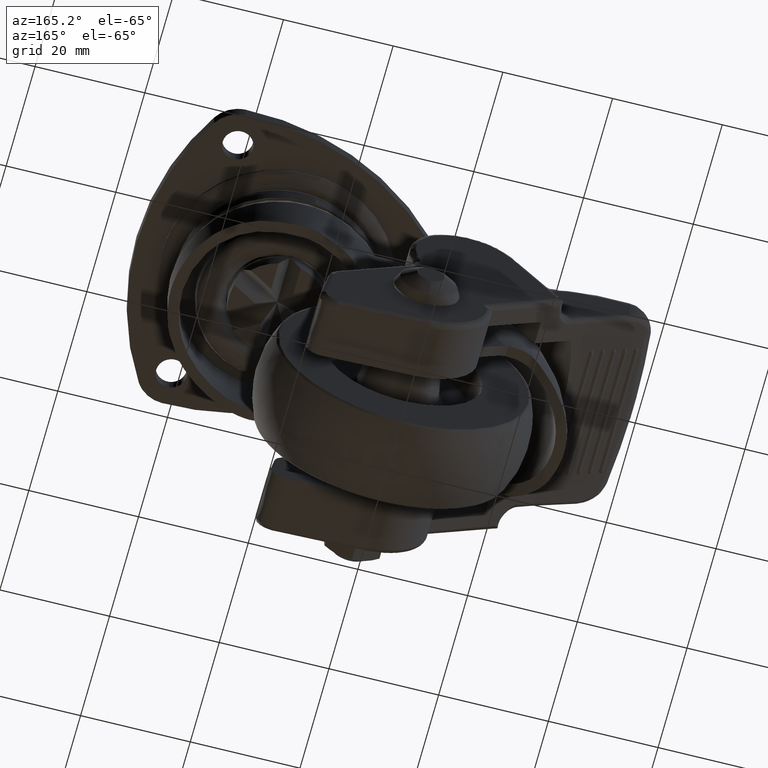
[diagram: clean part render]
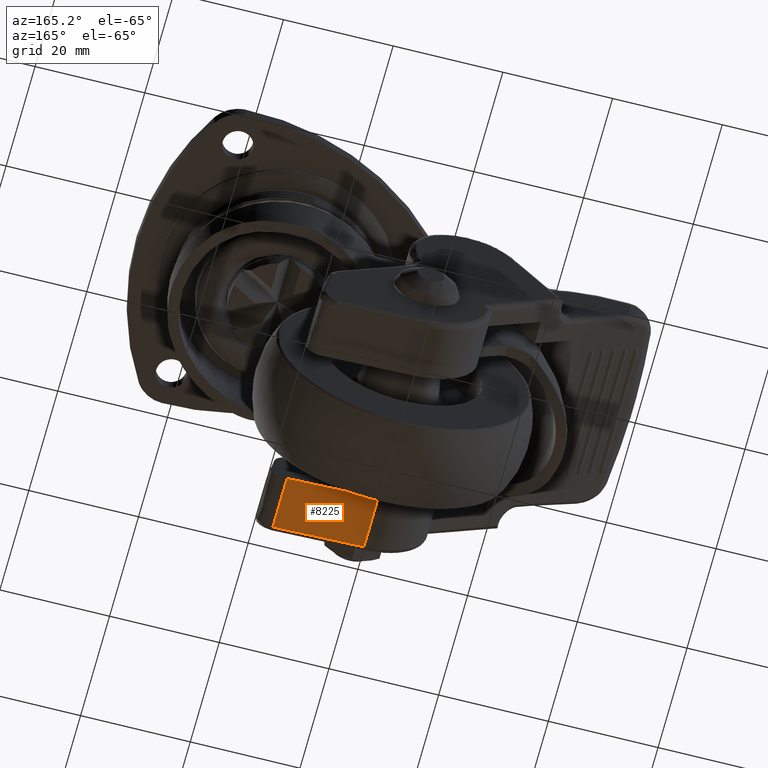
[diagram: same view with one face highlighted and labeled with its STEP entity id]
A machine part, auxiliary view. The second image highlights one B-rep face of the part: STEP entity #8225.
In plain terms, the highlighted face is a freeform B-spline surface patch.
Its self-contained STEP definition (entity closure, byte-faithful):
#5190=CARTESIAN_POINT('',(-21.643731261788201,-22.100000000000001,-57.283143277481287));
#5191=VERTEX_POINT('',#5190);
#5296=CARTESIAN_POINT('',(-5.046768868728740,-22.100000000000001,-58.152953604263800));
#5297=VERTEX_POINT('',#5296);
#5321=CARTESIAN_POINT('',(-5.046768868728740,-22.100000000000001,-58.152953604263800));
#5322=CARTESIAN_POINT('',(-21.643731261788201,-22.100000000000001,-57.283143277481287));
#5323=QUASI_UNIFORM_CURVE('',1,(#5321,#5322),.UNSPECIFIED.,.F.,.U.);
#5324=EDGE_CURVE('',#5297,#5191,#5323,.T.);
#8173=CARTESIAN_POINT('',(-21.643729744433550,-12.300000000000001,-57.283143357002402));
#8174=VERTEX_POINT('',#8173);
#8175=CARTESIAN_POINT('',(-21.643731261788201,-22.100000000000001,-57.283143277481287));
#8176=CARTESIAN_POINT('',(-21.643729744433550,-12.300000000000001,-57.283143357002402));
#8177=QUASI_UNIFORM_CURVE('',1,(#8175,#8176),.UNSPECIFIED.,.F.,.U.);
#8178=EDGE_CURVE('',#5191,#8174,#8177,.T.);
#8204=CARTESIAN_POINT('',(-4.217750317762737,-22.589510405970159,-58.196400644731042));
#8205=CARTESIAN_POINT('',(-22.472749961142600,-22.589510405970159,-57.239696229237289));
#8206=CARTESIAN_POINT('',(-4.217750317762737,-11.810490470218120,-58.196400644731042));
#8207=CARTESIAN_POINT('',(-22.472749961142600,-11.810490470218120,-57.239696229237289));
#8208=B_SPLINE_SURFACE_WITH_KNOTS('',1,1,((#8204,#8206),(#8205,#8207)),.UNSPECIFIED.,.F.,.F.,.U.,(2,2),(2,2),(0.0,18.280051841240070),(0.0,10.779019935752039),.UNSPECIFIED.);
#8209=CARTESIAN_POINT('',(-5.046768868728740,-12.300000000000001,-58.152953604263800));
#8210=VERTEX_POINT('',#8209);
#8211=CARTESIAN_POINT('',(-5.046768868728740,-22.100000000000001,-58.152953604263800));
#8212=CARTESIAN_POINT('',(-5.046768868728740,-12.300000000000001,-58.152953604263800));
#8213=QUASI_UNIFORM_CURVE('',1,(#8211,#8212),.UNSPECIFIED.,.F.,.U.);
#8214=EDGE_CURVE('',#5297,#8210,#8213,.T.);
#8215=ORIENTED_EDGE('',*,*,#8214,.F.);
#8216=ORIENTED_EDGE('',*,*,#5324,.T.);
#8217=ORIENTED_EDGE('',*,*,#8178,.T.);
#8218=CARTESIAN_POINT('',(-5.046768868728740,-12.300000000000001,-58.152953604263800));
#8219=CARTESIAN_POINT('',(-21.643729744433550,-12.300000000000001,-57.283143357002402));
#8220=QUASI_UNIFORM_CURVE('',1,(#8218,#8219),.UNSPECIFIED.,.F.,.U.);
#8221=EDGE_CURVE('',#8210,#8174,#8220,.T.);
#8222=ORIENTED_EDGE('',*,*,#8221,.F.);
#8223=EDGE_LOOP('',(#8215,#8216,#8217,#8222));
#8224=FACE_OUTER_BOUND('',#8223,.T.);
#8225=ADVANCED_FACE('',(#8224),#8208,.T.);